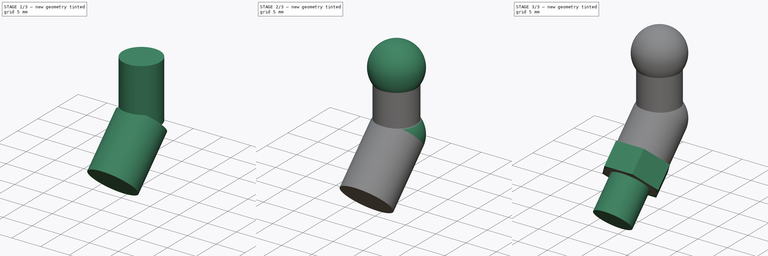
[diagram: build sequence overview — one tinted view per stage of 3, left to right]
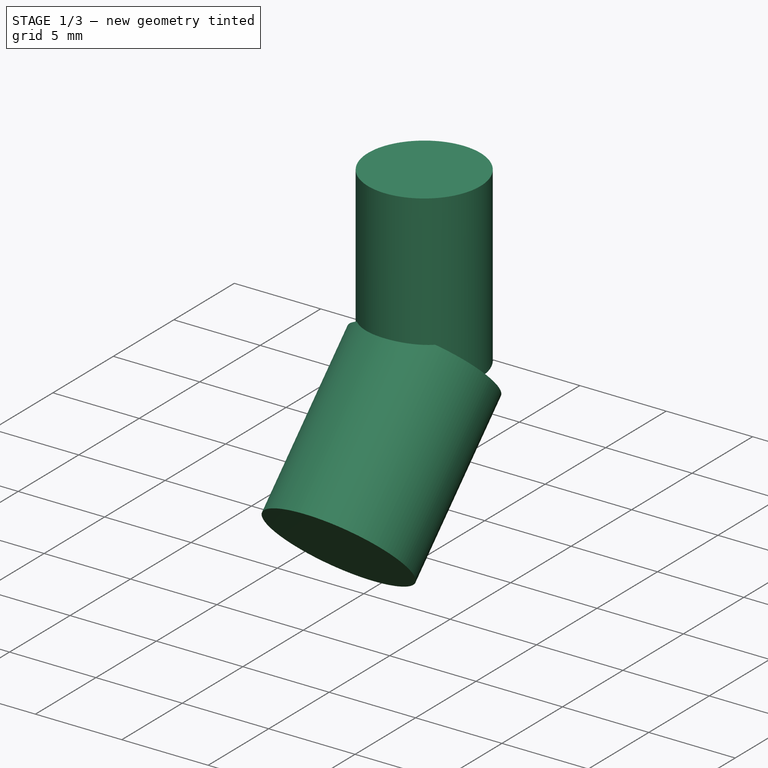
[diagram: stage 1 of 3 — iso view after this stage's code; geometry added in this stage tinted green]
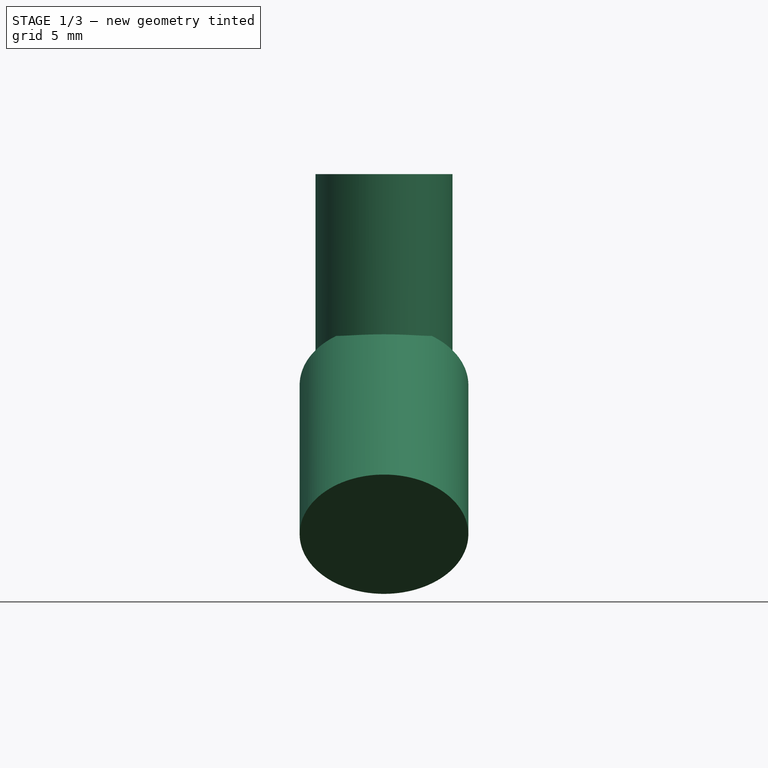
[diagram: stage 1 of 3 — front view after this stage's code; geometry added in this stage tinted green]
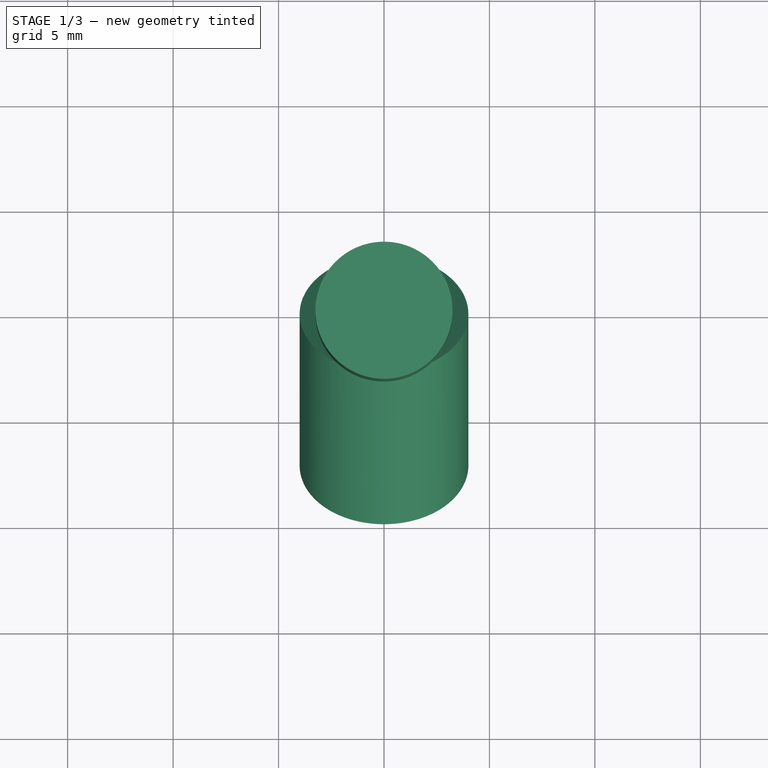
[diagram: stage 1 of 3 — top view after this stage's code; geometry added in this stage tinted green]
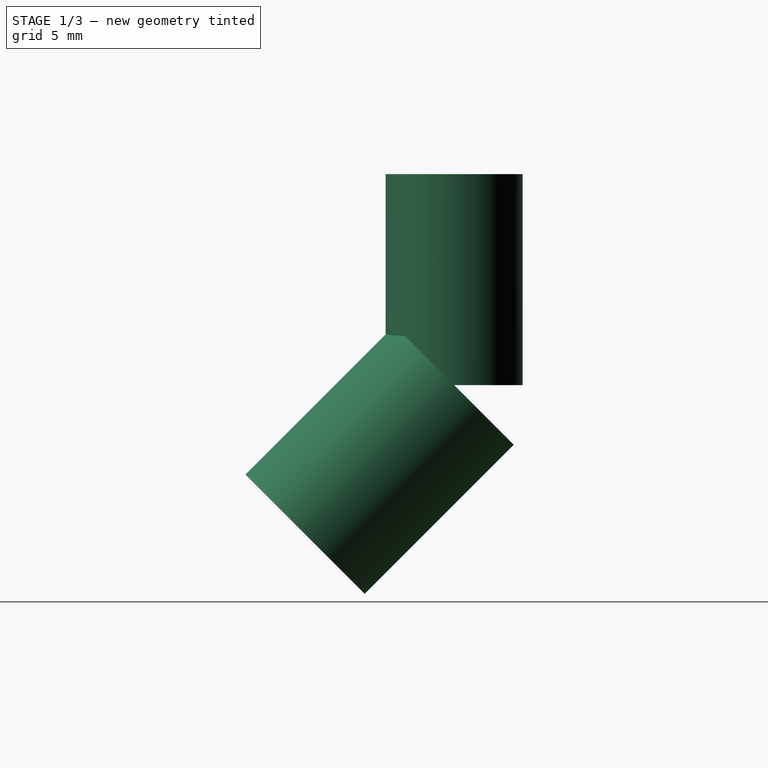
[diagram: stage 1 of 3 — right view after this stage's code; geometry added in this stage tinted green]
FCSTD DOCUMENT  (FreeCAD 0.19R24267 +99 (Git))
Label: Grease nipple approximate model
License: All rights reserved
LicenseURL: http://en.wikipedia.org/wiki/All_rights_reserved
objects: Sketcher::SketchObject×4, PartDesign::Pad×4, PartDesign::AdditiveSphere×2, PartDesign::Body×1
note: 17 computed .brp shape members not serialized (recipe doc carries the construction recipe); baked Part::Feature solids carry a one-line shape summary decoded from their .brp

FEATURE [Sketcher::SketchObject] Sketch  label="Angled section diameter"
  FullyConstrained = true
  MapMode = 5
  Support = -> [XY_Plane]
  sketch-geometry (1):
    g0: Circle CenterX=0 CenterY=0 CenterZ=0 NormalX=0 NormalY=0 NormalZ=1 AngleXU=0 Radius=3.25
  constraints (2):
    c: Coincident(g0,g-1)
    c: Diameter(g0) = 6.5
FEATURE [PartDesign::Pad] Pad  label="Angled section length"
  Direction = (1,1,1)
  Length = 10
  Length2 = 100
  Profile = -> Sketch
  Type = 0
FEATURE [Sketcher::SketchObject] Sketch001  label="Straight section diameter"
  AttachmentOffset = pos=(0,0,0) rot=(1,0,0;2.35619rad)
  FullyConstrained = true
  MapMode = 5
  Placement = pos=(0,0,0) rot=(1,0,0;2.35619rad)
  Support = -> [XY_Plane]
  sketch-geometry (1):
    g0: Circle CenterX=0 CenterY=0 CenterZ=0 NormalX=0 NormalY=0 NormalZ=1 AngleXU=0 Radius=4
  constraints (3):
    c: PointOnObject(g0,g-2)
    c: PointOnObject(g0,g-1)
    c: Diameter(g0) = 8
FEATURE [PartDesign::Pad] Pad001  label="Straight section length"
  BaseFeature = -> Pad
  Direction = (1,1,1)
  Length = 10
  Length2 = 100
  Profile = -> Sketch001
  Type = 0
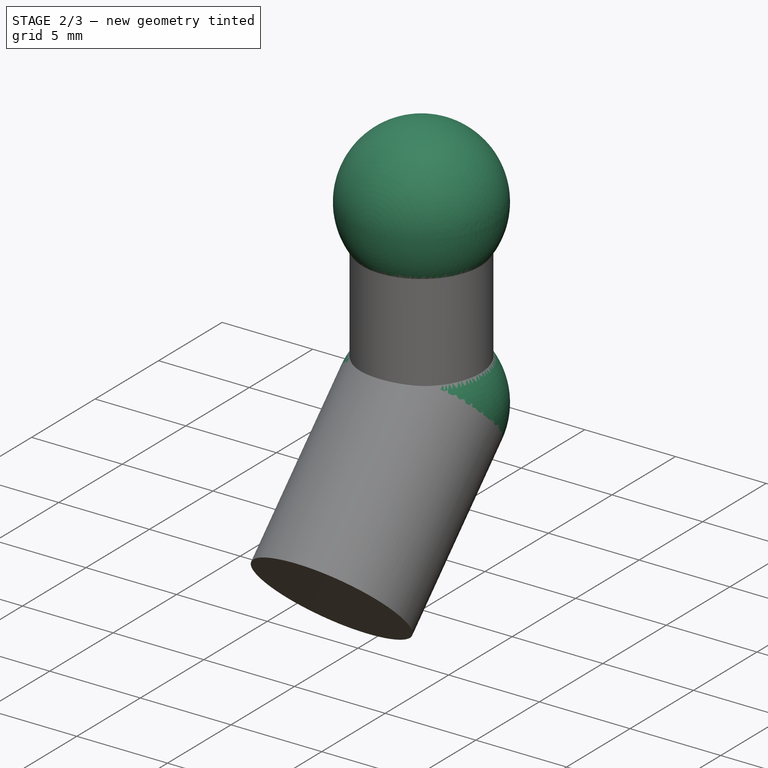
[diagram: stage 2 of 3 — iso view after this stage's code; geometry added in this stage tinted green]
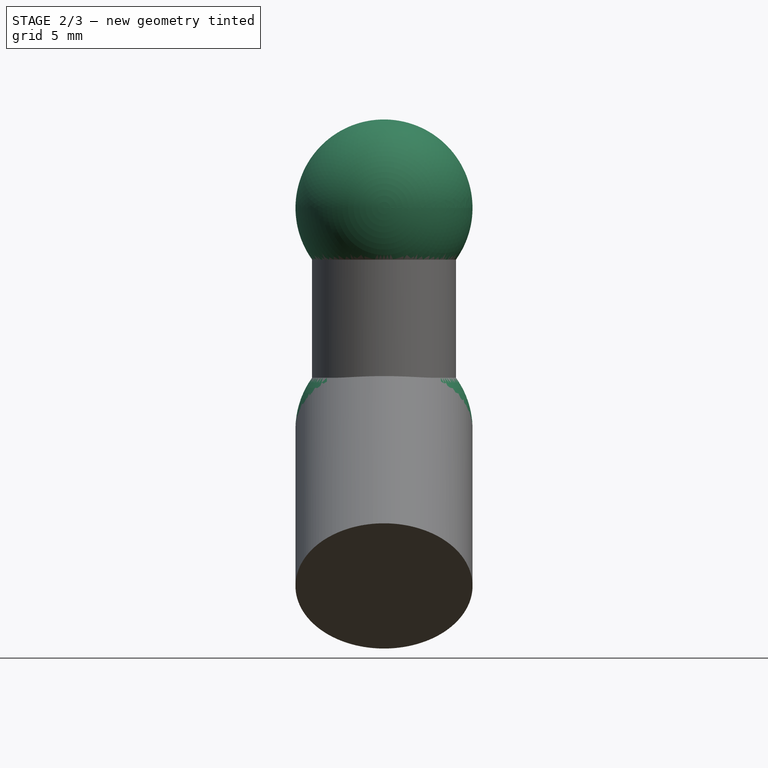
[diagram: stage 2 of 3 — front view after this stage's code; geometry added in this stage tinted green]
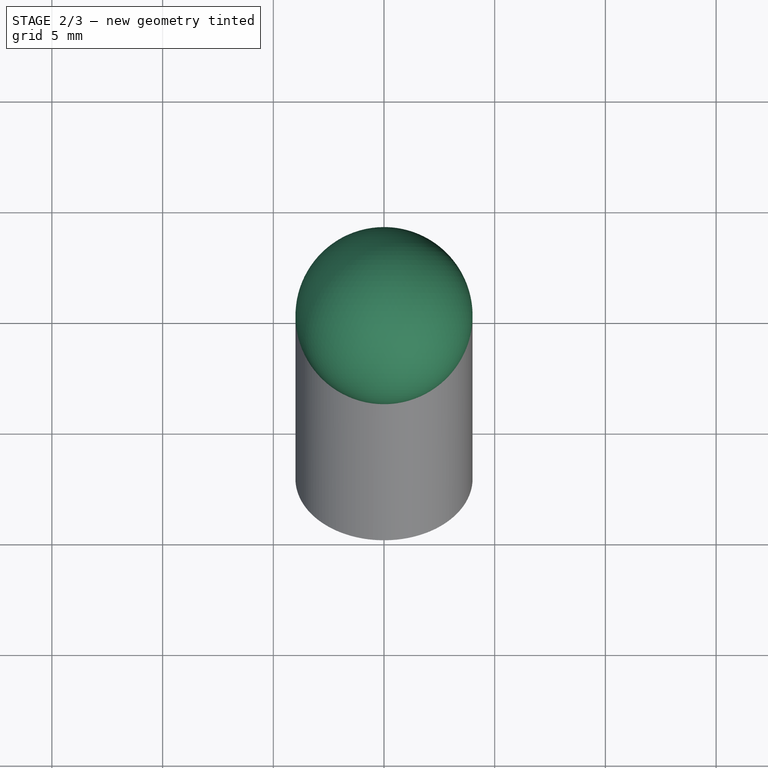
[diagram: stage 2 of 3 — top view after this stage's code; geometry added in this stage tinted green]
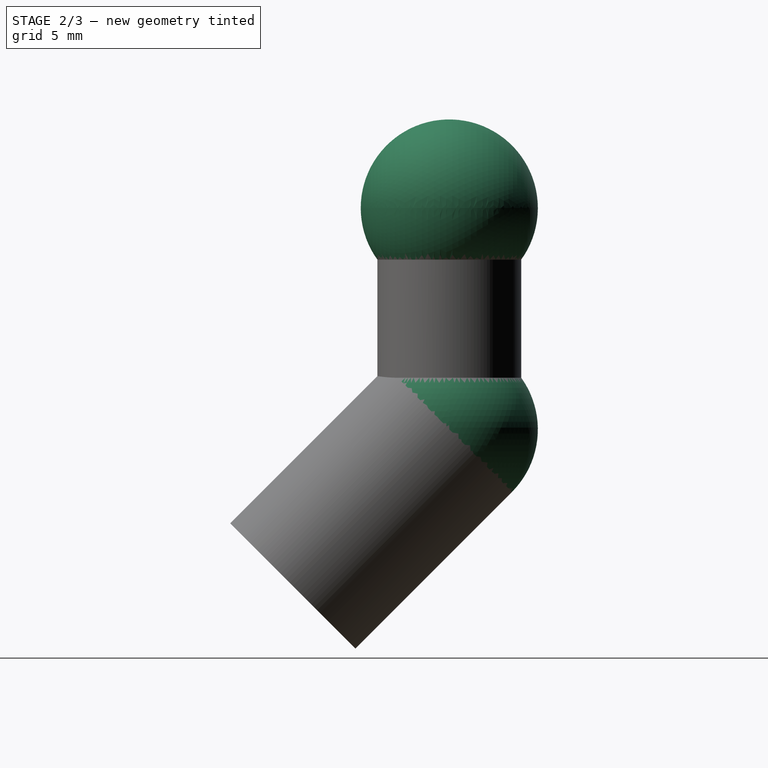
[diagram: stage 2 of 3 — right view after this stage's code; geometry added in this stage tinted green]
FEATURE [PartDesign::AdditiveSphere] Sphere  label="Joining sphere"
  Angle1 = -90
  Angle2 = 90
  Angle3 = 360
  AttacherType = Attacher::AttachEngine3D
  BaseFeature = -> Pad001
  Radius = 4
FEATURE [PartDesign::AdditiveSphere] Sphere001  label="End sphere"
  Angle1 = -90
  Angle2 = 90
  Angle3 = 360
  AttacherType = Attacher::AttachEngine3D
  AttachmentOffset = pos=(0,10,0) rot=(0,0,1;0rad)
  BaseFeature = -> Sphere
  MapMode = 5
  Placement = pos=(0,-2.2e-15,10) rot=(1,0,0;1.5708rad)
  Radius = 4
  Support = -> [XZ_Plane]
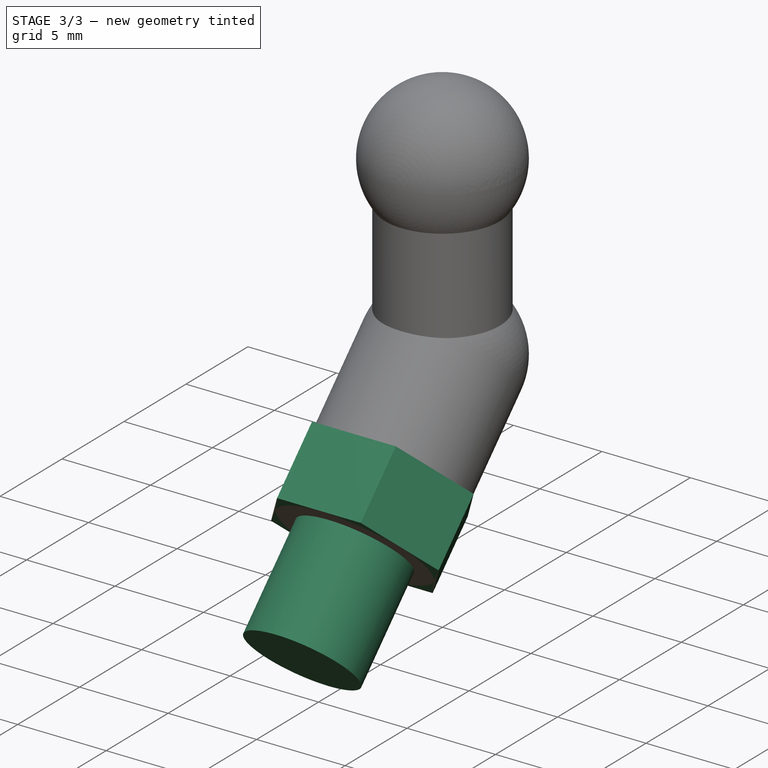
[diagram: stage 3 of 3 — iso view after this stage's code; geometry added in this stage tinted green]
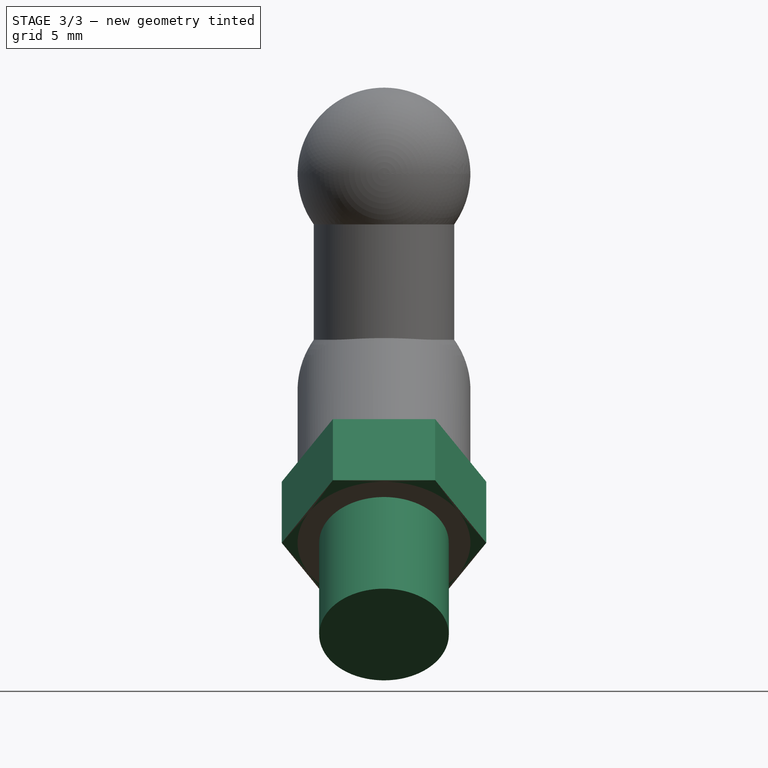
[diagram: stage 3 of 3 — front view after this stage's code; geometry added in this stage tinted green]
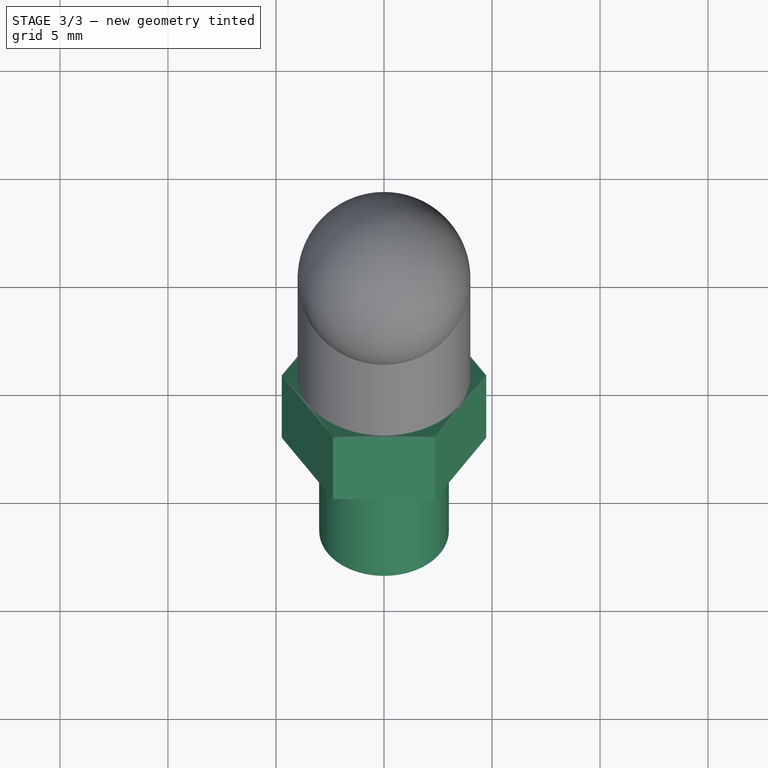
[diagram: stage 3 of 3 — top view after this stage's code; geometry added in this stage tinted green]
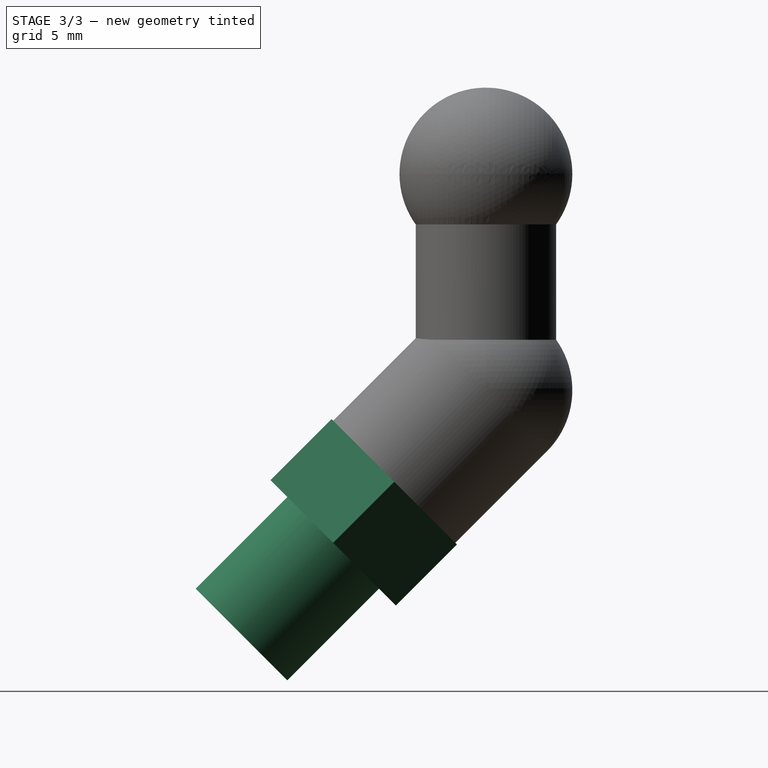
[diagram: stage 3 of 3 — right view after this stage's code; geometry added in this stage tinted green]
FEATURE [Sketcher::SketchObject] Sketch002  label="Thread representation diameter"
  ExternalGeometry = -> [Sphere001]
  FullyConstrained = true
  MapMode = 5
  Placement = pos=(-3e-16,-12.0711,-2.07107) rot=(1,0,0;2.35619rad)
  Support = -> [Sphere001]
  sketch-geometry (1):
    g0: Circle CenterX=3e-16 CenterY=-7.07107 CenterZ=0 NormalX=0 NormalY=0 NormalZ=1 AngleXU=0 Radius=3
  constraints (2):
    c: Coincident(g0,g-3)
    c: Diameter(g0) = 6
FEATURE [PartDesign::Pad] Pad002  label="Thread representation length"
  BaseFeature = -> Sphere001
  Direction = (1,1,1)
  Length = 6
  Length2 = 100
  Placement = pos=(0,-2.2e-15,10) rot=(1,0,0;1.5708rad)
  Profile = -> Sketch002
  Type = 0
FEATURE [Sketcher::SketchObject] Sketch003  label="Hex representation size"
  ExternalGeometry = -> [Pad002]
  FullyConstrained = true
  MapMode = 5
  Placement = pos=(-3e-16,-12.0711,-2.07107) rot=(1,0,0;2.35619rad)
  Support = -> [Pad002]
  sketch-geometry (7):
    g0: LineSegment StartX=2.36714 StartY=-2.97107 StartZ=0 EndX=-2.36714 EndY=-2.97107 EndZ=0
    g1: LineSegment StartX=-2.36714 StartY=-2.97107 StartZ=0 EndX=-4.73427 EndY=-7.07107 EndZ=0
    g2: LineSegment StartX=-4.73427 StartY=-7.07107 StartZ=0 EndX=-2.36714 EndY=-11.1711 EndZ=0
    g3: LineSegment StartX=-2.36714 StartY=-11.1711 StartZ=0 EndX=2.36714 EndY=-11.1711 EndZ=0
    g4: LineSegment StartX=2.36714 StartY=-11.1711 StartZ=0 EndX=4.73427 EndY=-7.07107 EndZ=0
    g5: LineSegment StartX=4.73427 StartY=-7.07107 StartZ=0 EndX=2.36714 EndY=-2.97107 EndZ=0
    g6: Circle CenterX=3e-16 CenterY=-7.07107 CenterZ=0 NormalX=0 NormalY=0 NormalZ=1 AngleXU=0 Radius=4.73427
  constraints (16):
    c: Coincident(g0,g1)
    c: Coincident(g1,g2)
    c: Coincident(g2,g3)
    c: Coincident(g3,g4)
    c: Coincident(g4,g5)
    c: Coincident(g5,g0)
    c: Equal(g0, g1-g5) x5
    c: PointOnObject(g0,g6)
    c: PointOnObject(g1,g6)
    c: PointOnObject(g2,g6)
    c: PointOnObject(g3,g6)
    c: PointOnObject(g4,g6)
    c: PointOnObject(g5,g6)
    c: Horizontal(g0)
    c: Coincident(g-3,g6)
    c: DistanceY(g3,g0) = 8.2
FEATURE [PartDesign::Pad] Pad003  label="Hex representation length"
  BaseFeature = -> Pad002
  Direction = (1,1,1)
  Length = 4
  Length2 = 100
  Placement = pos=(0,-2.2e-15,10) rot=(1,0,0;1.5708rad)
  Profile = -> Sketch003
  Reversed = true
  Type = 0
FEATURE [PartDesign::Body] Body
  Group = -> [Sketch,Pad,Sketch001,Pad001,Sphere,Sphere001,Sketch002,Pad002,Sketch003,Pad003]
  Origin = -> Origin
  Tip = -> Pad003
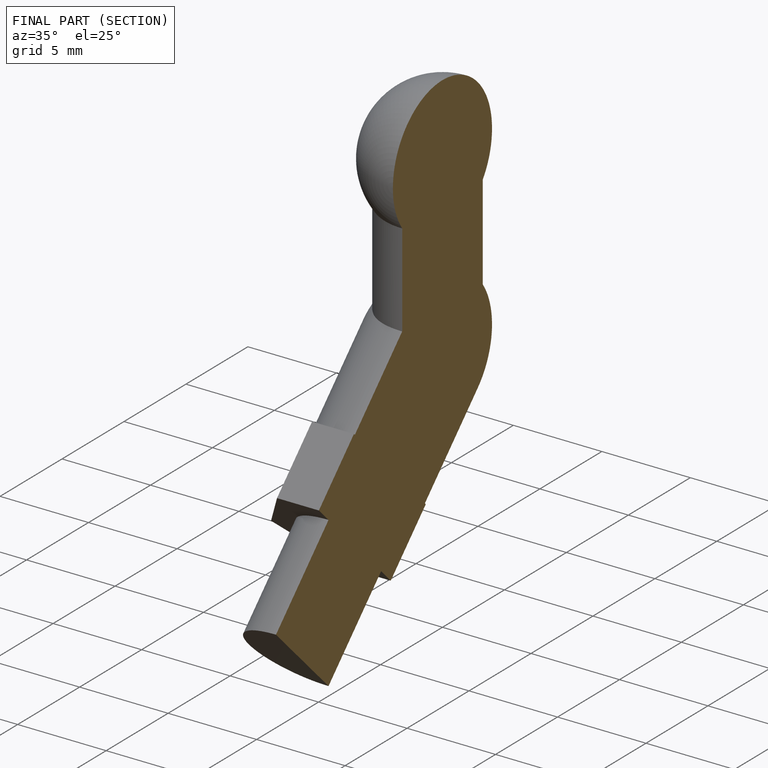
[diagram: finished part — half-section view (interior)]
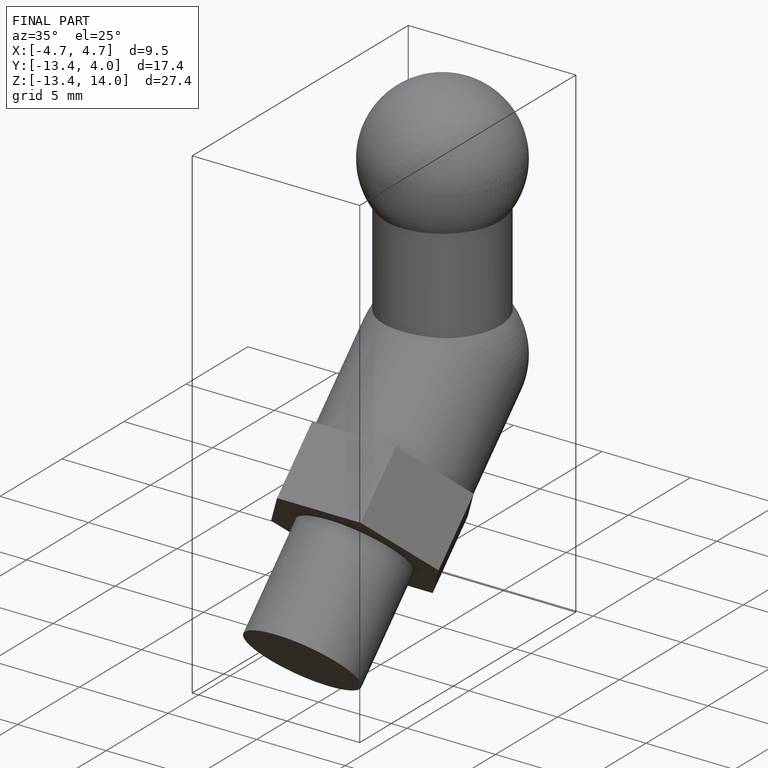
[diagram: finished part — iso view with bounding-box wireframe]
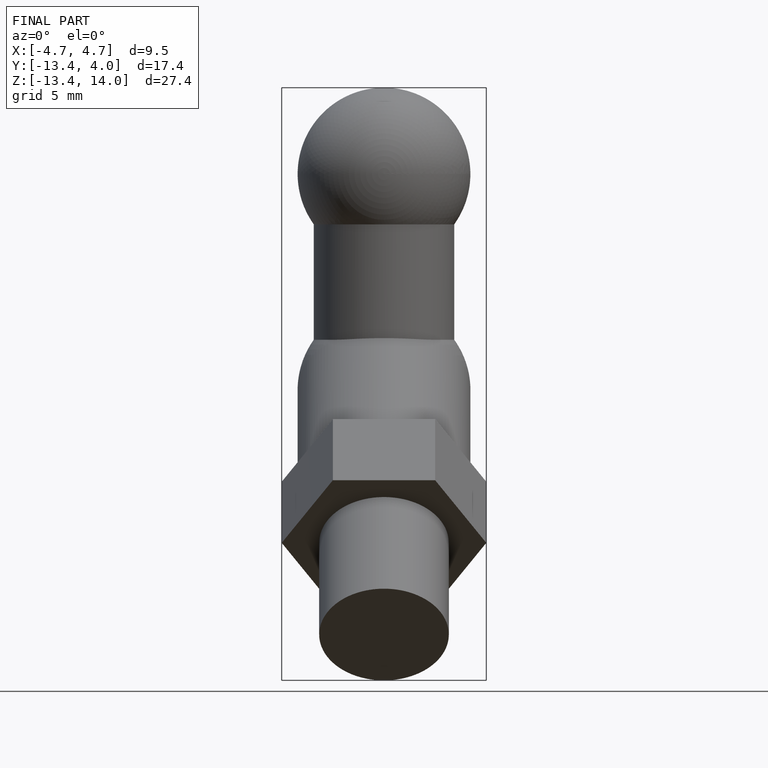
[diagram: finished part — front view with bounding-box wireframe]
